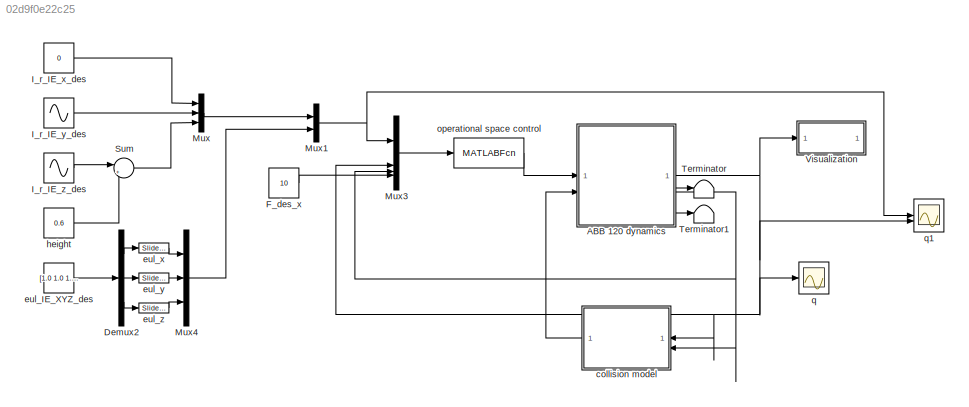
MODEL mdl_02d9f0e22c25
KIND model
CONFIG AbsTol = auto
CONFIG EnableMultiTasking = off
CONFIG FixedStep = auto
CONFIG MaxStep = auto
CONFIG MinStep = auto
CONFIG RelTol = 1e-3
CONFIG SampleTimeConstraint = Unconstrained
CONFIG SolverName = ode45
CONFIG StartTime = 0.0
CONFIG StopTime = inf
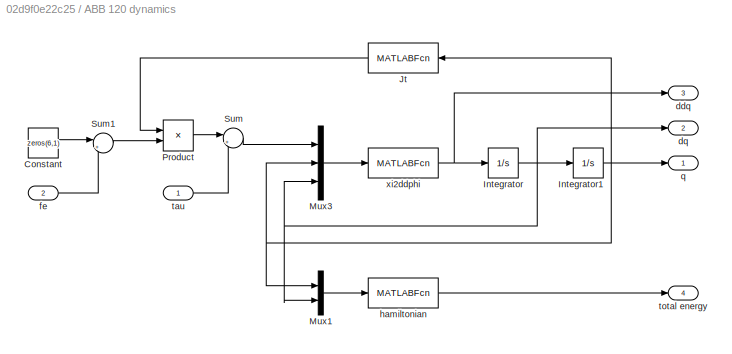
BLOCK [SubSystem] ABB 120 dynamics
BLOCK [Constant] ABB 120 dynamics/Constant
  Value = zeros(6,1)
BLOCK [Integrator] ABB 120 dynamics/Integrator
  InitialCondition = dphi0
BLOCK [Integrator] ABB 120 dynamics/Integrator1
  InitialCondition = phi0
BLOCK [MATLABFcn] ABB 120 dynamics/Jt
  MATLABFcn = I_Je_fun_solution(u(1:6))'
  Output1D = off
  OutputDimensions = [6,6]
  OutputSignalType = real
BLOCK [Mux] ABB 120 dynamics/Mux1
  DisplayOption = bar
  Inputs = 2
BLOCK [Mux] ABB 120 dynamics/Mux3
  DisplayOption = bar
  Inputs = 3
BLOCK [Product] ABB 120 dynamics/Product
  Multiplication = Matrix(*)
BLOCK [Sum] ABB 120 dynamics/Sum
  Inputs = |++
BLOCK [Sum] ABB 120 dynamics/Sum1
  Inputs = |++
BLOCK [Outport] ABB 120 dynamics/ddq
  Port = 3
BLOCK [Outport] ABB 120 dynamics/dq
  Port = 2
BLOCK [Inport] ABB 120 dynamics/fe
  Port = 2
BLOCK [MATLABFcn] ABB 120 dynamics/hamiltonian
  MATLABFcn = hamiltonian_fun_solution(u(1:6), u(7:12))
  Output1D = off
  OutputDimensions = [1,1]
BLOCK [Outport] ABB 120 dynamics/q
BLOCK [Inport] ABB 120 dynamics/tau
BLOCK [Outport] ABB 120 dynamics/total energy
  Port = 4
BLOCK [MATLABFcn] ABB 120 dynamics/xi2ddphi
  MATLABFcn = abb_eom_solution(u(1:6), u(7:12), u(13:18),F,enable_g,enable_f)
  Output1D = off
  OutputDimensions = [6,1]
BLOCK [Demux] Demux2
  Outputs = 3
BLOCK [Constant] F_des_x
  Value = 10
BLOCK [Constant] I_r_IE_x_des
  Value = 0
BLOCK [Sin] I_r_IE_y_des
  Amplitude = 0.1
  Frequency = 2*pi*0.2
  Phase = pi/2
  SampleTime = 0
BLOCK [Sin] I_r_IE_z_des
  Amplitude = 0.1
  Frequency = 2*pi*0.2
  SampleTime = 0
BLOCK [Mux] Mux
  DisplayOption = bar
  Inputs = 3
BLOCK [Mux] Mux1
  DisplayOption = bar
  Inputs = 2
BLOCK [Mux] Mux3
  DisplayOption = bar
BLOCK [Mux] Mux4
  DisplayOption = bar
  Inputs = 3
BLOCK [Sum] Sum
  Inputs = |++
BLOCK [Terminator] Terminator
BLOCK [Terminator] Terminator1
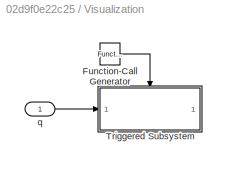
BLOCK [SubSystem] Visualization
BLOCK [Reference] Visualization/Function-Call Generator  REF=simulink/Ports &
Subsystems/Function-Call
Generator
  SourceBlock = simulink/Ports &\nSubsystems/Function-Call\nGenerator
  SourceType = Function-Call Generator
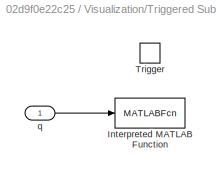
BLOCK [SubSystem] Visualization/Triggered Subsystem
  TreatAsAtomicUnit = on
BLOCK [MATLABFcn] Visualization/Triggered Subsystem/Interpreted MATLAB Function
  MATLABFcn = abbRobot.setJointPositions(u)
  OutputDimensions = 0
BLOCK [TriggerPort] Visualization/Triggered Subsystem/Trigger
  StatesWhenEnabling = held
  TriggerType = function-call
  VariantControl = Variant
BLOCK [Inport] Visualization/Triggered Subsystem/q
BLOCK [Inport] Visualization/q
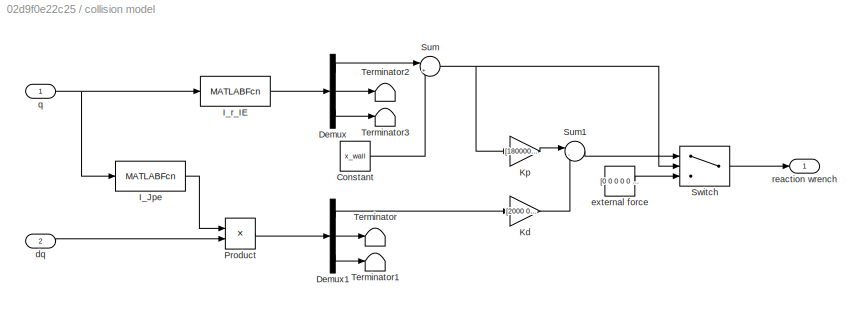
BLOCK [SubSystem] collision model
BLOCK [Constant] collision model/Constant
  Value = x_wall
BLOCK [Demux] collision model/Demux
  Outputs = 3
BLOCK [Demux] collision model/Demux1
  Outputs = 3
BLOCK [MATLABFcn] collision model/I_Jpe
  MATLABFcn = [eye(3) zeros(3,3)] * I_Je_fun_solution(u(1:6))
  Output1D = off
  OutputDimensions = [3,6]
BLOCK [MATLABFcn] collision model/I_r_IE
  MATLABFcn = I_r_IE_fun_solution(u)
  Output1D = off
  OutputDimensions = [3,1]
BLOCK [Gain] collision model/Kd 
  Gain = [2000 0 0 0 0 0]'
  Multiplication = Matrix(K*u)
BLOCK [Gain] collision model/Kp
  Gain = [180000 0 0 0 0 0]'
  Multiplication = Matrix(K*u)
BLOCK [Product] collision model/Product
  Multiplication = Matrix(*)
BLOCK [Sum] collision model/Sum
  Inputs = |+-
BLOCK [Sum] collision model/Sum1
  Inputs = |--
BLOCK [Switch] collision model/Switch
  InputSameDT = off
  SaturateOnIntegerOverflow = off
  Threshold = 0.0
BLOCK [Terminator] collision model/Terminator
BLOCK [Terminator] collision model/Terminator1
BLOCK [Terminator] collision model/Terminator2
BLOCK [Terminator] collision model/Terminator3
BLOCK [Inport] collision model/dq
  Port = 2
BLOCK [Constant] collision model/external force
  Value = [0 0 0 0 0 0]'
BLOCK [Inport] collision model/q
BLOCK [Outport] collision model/reaction wrench
BLOCK [Constant] eul_IE_XYZ_des
  Value = [1.0 1.0 1.0]'
BLOCK [Reference] eul_x  REF=simulink/Math
Operations/Slider
Gain
  SourceBlock = simulink/Math\nOperations/Slider\nGain
  SourceType = Slider Gain
BLOCK [Reference] eul_y  REF=simulink/Math
Operations/Slider
Gain
  SourceBlock = simulink/Math\nOperations/Slider\nGain
  SourceType = Slider Gain
BLOCK [Reference] eul_z  REF=simulink/Math
Operations/Slider
Gain
  SourceBlock = simulink/Math\nOperations/Slider\nGain
  SourceType = Slider Gain
BLOCK [Constant] height
  Value = 0.6
BLOCK [MATLABFcn] operational space control
  MATLABFcn = control_op_space_hybrid( u(1:3), u(4:6), u(7:12), u(13:18), u(19))
  Output1D = off
  OutputDimensions = [6,1]
BLOCK [Scope] q
  Floating = off
  NumInputPorts = 1
  ScopeSpecificationString = Simulink.scopes.TimeScopeBlockCfg('CurrentConfiguration', extmgr.ConfigurationSet(extmgr.Configuration('Core','General UI',true,'FigureColor',[0.156862745098039 0.156862745098039 0.156862745098039]),extmgr.Configuration('Core','Source UI',true),extmgr.Configuration('Sources','WiredSimulink',true,'DataLoggingSaveFormat','StructureWithTime','DataLoggingDecimation','1','DataLoggingDecimateData',true)...<+2870ch>
BLOCK [Scope] q1
  Floating = off
  NumInputPorts = 2
  ScopeSpecificationString = Simulink.scopes.TimeScopeBlockCfg('CurrentConfiguration', extmgr.ConfigurationSet(extmgr.Configuration('Core','General UI',true,'FigureColor',[0.156862745098039 0.156862745098039 0.156862745098039]),extmgr.Configuration('Core','Source UI',true),extmgr.Configuration('Sources','WiredSimulink',true,'DataLoggingSaveFormat','StructureWithTime','DataLoggingDecimation','1','DataLoggingDecimateData',true,...<+3114ch>
LINE ABB 120 dynamics/Constant:1 -> ABB 120 dynamics/Sum1:1
NET ABB 120 dynamics/Integrator1:1 -> ABB 120 dynamics/Jt:1, ABB 120 dynamics/Mux1:1, ABB 120 dynamics/Mux3:2, ABB 120 dynamics/q:1
NET ABB 120 dynamics/Integrator:1 -> ABB 120 dynamics/Integrator1:1, ABB 120 dynamics/Mux1:2, ABB 120 dynamics/Mux3:3, ABB 120 dynamics/dq:1
LINE ABB 120 dynamics/Jt:1 -> ABB 120 dynamics/Product:1
LINE ABB 120 dynamics/Mux1:1 -> ABB 120 dynamics/hamiltonian:1
LINE ABB 120 dynamics/Mux3:1 -> ABB 120 dynamics/xi2ddphi:1
LINE ABB 120 dynamics/Product:1 -> ABB 120 dynamics/Sum:1
LINE ABB 120 dynamics/Sum1:1 -> ABB 120 dynamics/Product:2
LINE ABB 120 dynamics/Sum:1 -> ABB 120 dynamics/Mux3:1
LINE ABB 120 dynamics/fe:1 -> ABB 120 dynamics/Sum1:2
LINE ABB 120 dynamics/hamiltonian:1 -> ABB 120 dynamics/total energy:1
LINE ABB 120 dynamics/tau:1 -> ABB 120 dynamics/Sum:2
NET ABB 120 dynamics/xi2ddphi:1 -> ABB 120 dynamics/Integrator:1, ABB 120 dynamics/ddq:1
NET ABB 120 dynamics:1 -> Mux3:2, Visualization:1, collision model:1, q1:2, q:1
NET ABB 120 dynamics:2 -> Mux3:3, collision model:2
LINE ABB 120 dynamics:3 -> Terminator:1
LINE ABB 120 dynamics:4 -> Terminator1:1
LINE Demux2:1 -> eul_x:1
LINE Demux2:2 -> eul_y:1
LINE Demux2:3 -> eul_z:1
LINE F_des_x:1 -> Mux3:4
LINE I_r_IE_x_des:1 -> Mux:1
LINE I_r_IE_y_des:1 -> Mux:2
LINE I_r_IE_z_des:1 -> Sum:1
NET Mux1:1 -> Mux3:1, q1:1
LINE Mux3:1 -> operational space control:1
LINE Mux4:1 -> Mux1:2
LINE Mux:1 -> Mux1:1
LINE Sum:1 -> Mux:3
LINE Visualization/Function-Call Generator:1 -> Visualization/Triggered Subsystem:trigger
LINE Visualization/Triggered Subsystem/q:1 -> Visualization/Triggered Subsystem/Interpreted MATLAB Function:1
LINE Visualization/q:1 -> Visualization/Triggered Subsystem:1
LINE collision model/Constant:1 -> collision model/Sum:2
LINE collision model/Demux1:1 -> collision model/Kd :1
LINE collision model/Demux1:2 -> collision model/Terminator:1
LINE collision model/Demux1:3 -> collision model/Terminator1:1
LINE collision model/Demux:1 -> collision model/Sum:1
LINE collision model/Demux:2 -> collision model/Terminator2:1
LINE collision model/Demux:3 -> collision model/Terminator3:1
LINE collision model/I_Jpe:1 -> collision model/Product:1
LINE collision model/I_r_IE:1 -> collision model/Demux:1
LINE collision model/Kd :1 -> collision model/Sum1:2
LINE collision model/Kp:1 -> collision model/Sum1:1
LINE collision model/Product:1 -> collision model/Demux1:1
LINE collision model/Sum1:1 -> collision model/Switch:1
NET collision model/Sum:1 -> collision model/Kp:1, collision model/Switch:2
LINE collision model/Switch:1 -> collision model/reaction wrench:1
LINE collision model/dq:1 -> collision model/Product:2
LINE collision model/external force:1 -> collision model/Switch:3
NET collision model/q:1 -> collision model/I_Jpe:1, collision model/I_r_IE:1
LINE collision model:1 -> ABB 120 dynamics:2
LINE eul_IE_XYZ_des:1 -> Demux2:1
LINE eul_x:1 -> Mux4:1
LINE eul_y:1 -> Mux4:2
LINE eul_z:1 -> Mux4:3
LINE height:1 -> Sum:2
LINE operational space control:1 -> ABB 120 dynamics:1
note: NET lines group one-source signal fan-out (src -> all destinations, sorted); 1:1 wires keep LINE
